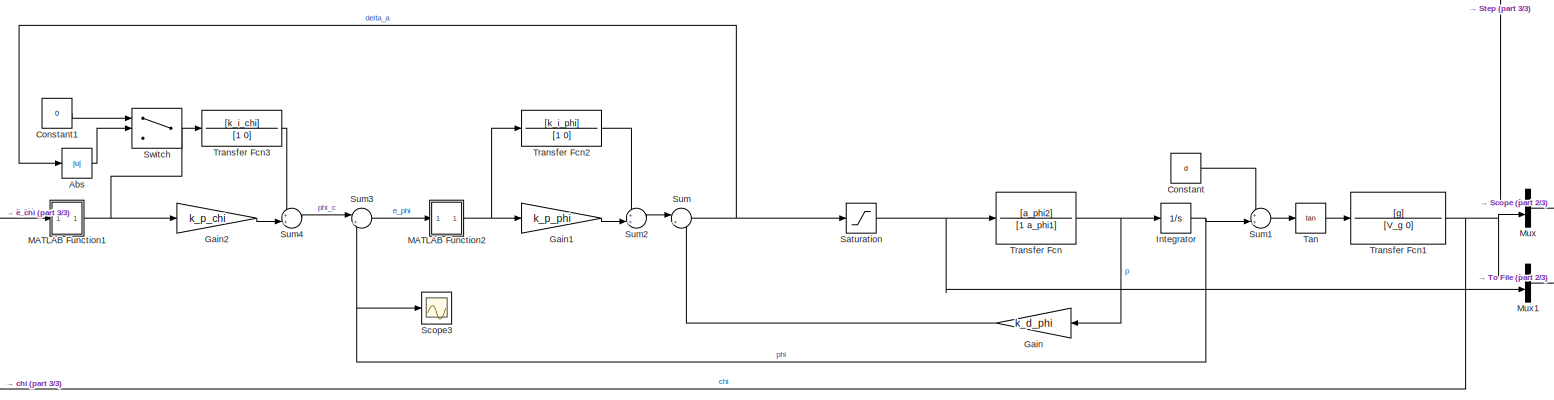
[diagram: root canvas - part 1/3, most of the canvas]
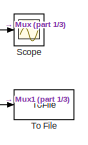
[diagram: root canvas - part 2/3, middle right region]
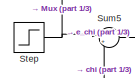
[diagram: root canvas - part 3/3, middle left region]
MODEL slx_45f2fc95b7ab
KIND model
CONFIG AbsTol = auto
CONFIG EnableMultiTasking = off
CONFIG FixedStep = auto
CONFIG MaxStep = auto
CONFIG MinStep = auto
CONFIG RelTol = 1e-3
CONFIG SampleTimeConstraint = Unconstrained
CONFIG SolverName = VariableStepAuto
CONFIG StartTime = 0.0
CONFIG StopTime = 100.0
BLOCK [Abs] Abs
  SaturateOnIntegerOverflow = off
BLOCK [Constant] Constant
  Value = d
BLOCK [Constant] Constant1
  Value = 0
BLOCK [Gain] Gain
  Gain = k_d_phi
BLOCK [Gain] Gain1
  Gain = k_p_phi
BLOCK [Gain] Gain2
  Gain = k_p_chi
BLOCK [Integrator] Integrator
  Ports = [1, 1]
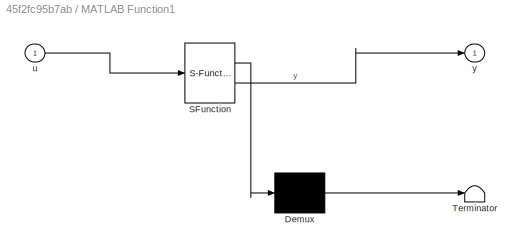
BLOCK [SubSystem] MATLAB Function1
  ErrorFcn = Stateflow.Translate.translate
  PermitHierarchicalResolution = ExplicitOnly
  Ports = [1, 1]
  RequestExecContextInheritance = off
  SFBlockType = MATLAB Function
  TreatAsAtomicUnit = on
BLOCK [Demux] MATLAB Function1/ Demux 
  Outputs = 1
  Ports = [1, 1]
BLOCK [S-Function] MATLAB Function1/ SFunction 
  EnableBusSupport = on
  FunctionName = sf_sfun
  PortCounts = [1 2]
  Ports = [1, 2]
  SFcnIsStateOwnerBlock = off
  SFunctionDeploymentMode = off
  Tag = Stateflow S-Function 1
BLOCK [Terminator] MATLAB Function1/ Terminator 
BLOCK [Inport] MATLAB Function1/u
BLOCK [Outport] MATLAB Function1/y
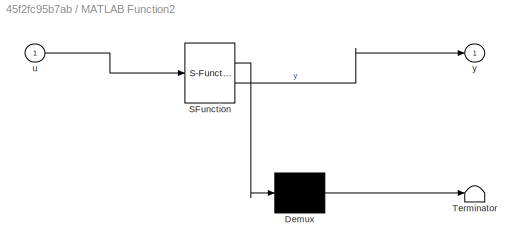
BLOCK [SubSystem] MATLAB Function2
  ErrorFcn = Stateflow.Translate.translate
  PermitHierarchicalResolution = ExplicitOnly
  Ports = [1, 1]
  RequestExecContextInheritance = off
  SFBlockType = MATLAB Function
  TreatAsAtomicUnit = on
BLOCK [Demux] MATLAB Function2/ Demux 
  Outputs = 1
  Ports = [1, 1]
BLOCK [S-Function] MATLAB Function2/ SFunction 
  EnableBusSupport = on
  FunctionName = sf_sfun
  PortCounts = [1 2]
  Ports = [1, 2]
  SFcnIsStateOwnerBlock = off
  SFunctionDeploymentMode = off
  Tag = Stateflow S-Function 2
BLOCK [Terminator] MATLAB Function2/ Terminator 
BLOCK [Inport] MATLAB Function2/u
BLOCK [Outport] MATLAB Function2/y
BLOCK [Mux] Mux
  DisplayOption = bar
  Inputs = 2
  Ports = [2, 1]
BLOCK [Mux] Mux1
  DisplayOption = bar
  Inputs = 2
  Ports = [2, 1]
BLOCK [Saturate] Saturation
  LowerLimit = -delta_a_max
  UpperLimit = delta_a_max
BLOCK [Scope] Scope
  Floating = off
  NumInputPorts = 1
  Ports = [1]
  ScopeSpecificationString = Simulink.scopes.TimeScopeBlockCfg('CurrentConfiguration', extmgr.ConfigurationSet(extmgr.Configuration('Core','General UI',true),extmgr.Configuration('Core','Source UI',true),extmgr.Configuration('Sources','WiredSimulink',true),extmgr.Configuration('Visuals','Time Domain',true,'SerializedDisplays',{struct('MinYLimReal','-0.12047','MaxYLimReal','1.0842','YLabelReal','','MinYLimMag','0.00000','MaxYL...<+1354ch>
BLOCK [Scope] Scope3
  Floating = off
  NumInputPorts = 1
  Ports = [1]
  ScopeSpecificationString = Simulink.scopes.TimeScopeBlockCfg('CurrentConfiguration', extmgr.ConfigurationSet(extmgr.Configuration('Core','General UI',true),extmgr.Configuration('Core','Source UI',true),extmgr.Configuration('Sources','WiredSimulink',true,'DataLoggingVariableName','ScopeData3'),extmgr.Configuration('Visuals','Time Domain',true,'SerializedDisplays',{struct('MinYLimReal','-6.84016','MaxYLimReal','1.94016','YLab...<+1362ch>
BLOCK [Step] Step
  After = 30*pi/180
  SampleTime = 0
  Time = 5
BLOCK [Sum] Sum
  Inputs = |+-
  Ports = [2, 1]
BLOCK [Sum] Sum1
  Inputs = ++|
  Ports = [2, 1]
BLOCK [Sum] Sum2
  Inputs = ++|
  Ports = [2, 1]
BLOCK [Sum] Sum3
  Inputs = |+-
  Ports = [2, 1]
BLOCK [Sum] Sum4
  Inputs = ++|
  Ports = [2, 1]
BLOCK [Sum] Sum5
  Inputs = |+-
  Ports = [2, 1]
BLOCK [Switch] Switch
  Criteria = u2 > Threshold
  InputSameDT = off
  SaturateOnIntegerOverflow = off
  Threshold = delta_a_max
BLOCK [Trigonometry] Tan
  Operator = tan
  Ports = [1, 1]
BLOCK [ToFile] To File
  Filename = step_30_without_anti_integrator_windup.mat
  Ports = [1]
BLOCK [TransferFcn] Transfer Fcn
  Denominator = [1 a_phi1]
  Numerator = [a_phi2]
BLOCK [TransferFcn] Transfer Fcn1
  Denominator = [V_g 0]
  Numerator = [g]
BLOCK [TransferFcn] Transfer Fcn2
  Denominator = [1 0]
  Numerator = [k_i_phi]
BLOCK [TransferFcn] Transfer Fcn3
  Denominator = [1 0]
  Numerator = [k_i_chi]
LINE Abs:1 -> Switch:2
LINE Constant1:1 -> Switch:1
LINE Constant:1 -> Sum1:1
LINE Gain1:1 -> Sum2:2
LINE Gain2:1 -> Sum4:2
LINE Gain:1 -> Sum:2
NET Integrator:1 -> Scope3:1, Sum1:2, Sum3:2
NET MATLAB Function1:1 -> Gain2:1, Transfer Fcn3:1
NET MATLAB Function2:1 -> Gain1:1, Transfer Fcn2:1
LINE Mux1:1 -> To File:1
LINE Mux:1 -> Scope:1
NET Saturation:1 -> Mux1:2, Transfer Fcn:1
NET Step:1 -> Mux:1, Sum5:1
LINE Sum1:1 -> Tan:1
LINE Sum2:1 -> Sum:1
LINE Sum3:1 -> MATLAB Function2:1
LINE Sum4:1 -> Sum3:1
LINE Sum5:1 -> MATLAB Function1:1
NET Sum:1 -> Abs:1, Saturation:1
LINE Tan:1 -> Transfer Fcn1:1
NET Transfer Fcn1:1 -> Mux1:1, Mux:2, Sum5:2
LINE Transfer Fcn2:1 -> Sum2:1
LINE Transfer Fcn3:1 -> Sum4:1
NET Transfer Fcn:1 -> Gain:1, Integrator:1
note: NET lines group one-source signal fan-out (src -> all destinations, sorted); 1:1 wires keep LINE
CHART MATLAB Function2 states=1 transitions=1
  STATE_LABEL 'eML_blk_kernel()'
  STATE_LABEL 'SCRIPT:\nfunction y = fcn(u)\n\ny = angdiff(0,u);\n'
CHART MATLAB Function1 states=1 transitions=1
  STATE_LABEL 'eML_blk_kernel()'
  STATE_LABEL 'SCRIPT:\nfunction y = fcn(u)\n\ny = angdiff(0,u);\n'
CHART  states=0 transitions=0
CHART  states=0 transitions=0
